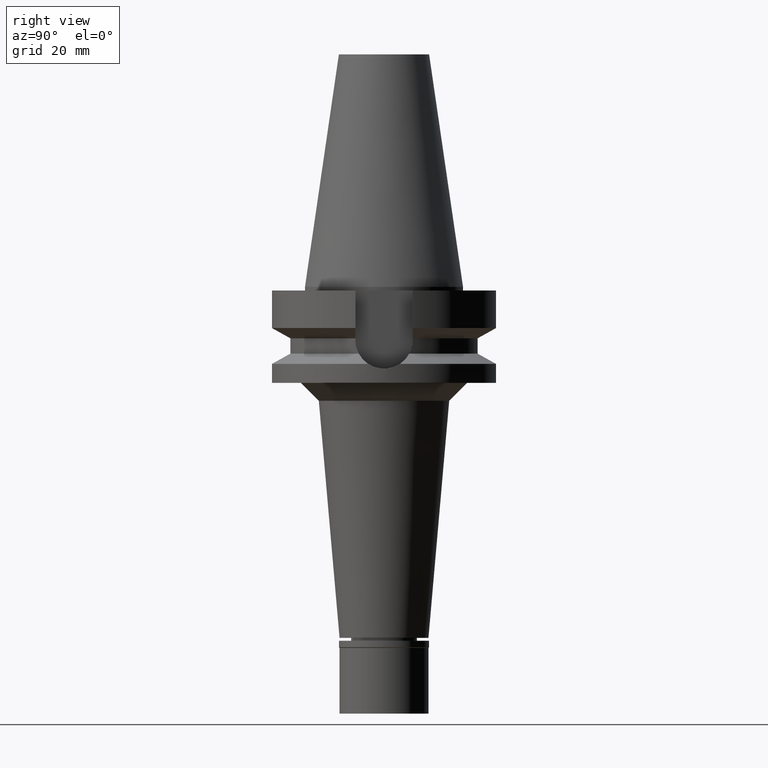
[diagram: clean part render]
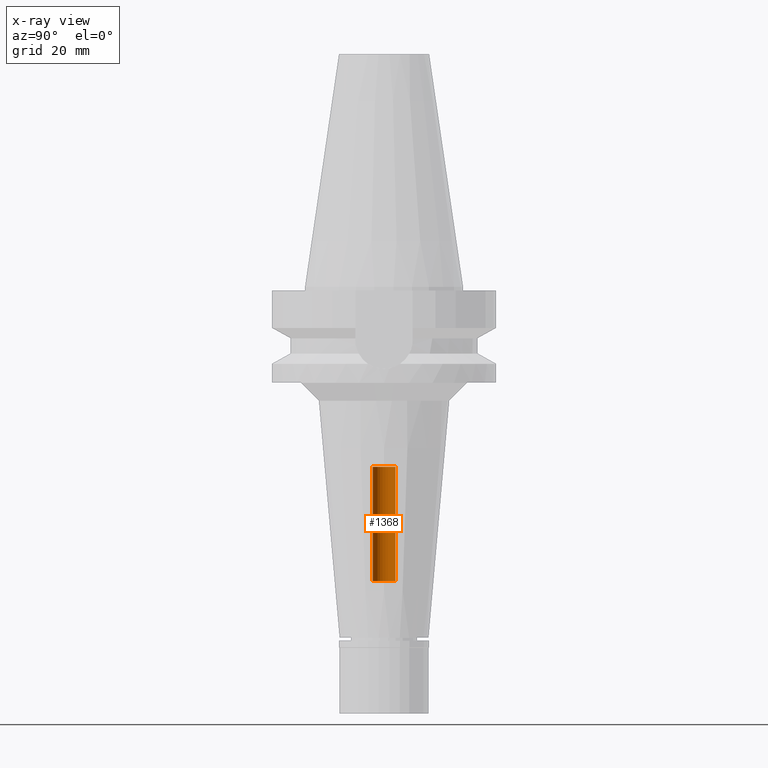
[diagram: x-ray — body ghosted, one internal face saturated and labeled with its STEP entity id]
A machine part, right view, then the same camera in x-ray: the body is ghosted and one INTERNAL B-rep face — a face not visible from any outside direction — is saturated and labeled: STEP entity #1368.
In plain terms, the highlighted cylindrical surface (edge-blend (fillet) strip) has radius 3.2 mm, axis along (0, 0, -1).
Its self-contained STEP definition (entity closure, byte-faithful):
#35 = CARTESIAN_POINT ( 'NONE',  ( 0.0000000000000000000, 3.200000000000000178, -82.79999999999999716 ) ) ;
#73 = AXIS2_PLACEMENT_3D ( 'NONE', #320, #2965, #2483 ) ;
#112 = CARTESIAN_POINT ( 'NONE',  ( 0.0000000000000000000, 2.135294158992999721E-14, -50.60000000000000142 ) ) ;
#139 = DIRECTION ( 'NONE',  ( 0.0000000000000000000, 0.0000000000000000000, -1.000000000000000000 ) ) ;
#173 = DIRECTION ( 'NONE',  ( 0.0000000000000000000, -1.000000000000000000, 0.0000000000000000000 ) ) ;
#225 = CARTESIAN_POINT ( 'NONE',  ( 0.0000000000000000000, -3.200000000000000178, -50.60000000000000142 ) ) ;
#244 = EDGE_CURVE ( 'NONE', #1211, #1273, #316, .T. ) ;
#316 = LINE ( 'NONE', #1025, #2407 ) ;
#320 = CARTESIAN_POINT ( 'NONE',  ( 0.0000000000000000000, 2.135294158992999721E-14, 74.35999999999999943 ) ) ;
#364 = EDGE_CURVE ( 'NONE', #1273, #1856, #3131, .T. ) ;
#790 = CARTESIAN_POINT ( 'NONE',  ( 0.0000000000000000000, 3.200000000000000178, -50.60000000000000142 ) ) ;
#849 = ORIENTED_EDGE ( 'NONE', *, *, #244, .T. ) ;
#1025 = CARTESIAN_POINT ( 'NONE',  ( 0.0000000000000000000, 3.200000000000000178, -82.79999999999999716 ) ) ;
#1028 = FACE_OUTER_BOUND ( 'NONE', #2341, .T. ) ;
#1066 = DIRECTION ( 'NONE',  ( 0.0000000000000000000, 0.0000000000000000000, 1.000000000000000000 ) ) ;
#1211 = VERTEX_POINT ( 'NONE', #35 ) ;
#1273 = VERTEX_POINT ( 'NONE', #790 ) ;
#1315 = DIRECTION ( 'NONE',  ( 0.0000000000000000000, 0.0000000000000000000, 1.000000000000000000 ) ) ;
#1368 = ADVANCED_FACE ( 'NONE', ( #1028 ), #1987, .F. ) ;
#1396 = VERTEX_POINT ( 'NONE', #2007 ) ;
#1456 = EDGE_CURVE ( 'NONE', #1396, #1211, #2752, .T. ) ;
#1492 = VECTOR ( 'NONE', #3069, 1000.000000000000000 ) ;
#1576 = ORIENTED_EDGE ( 'NONE', *, *, #364, .T. ) ;
#1618 = CARTESIAN_POINT ( 'NONE',  ( 0.0000000000000000000, 2.135294158992999721E-14, -82.79999999999999716 ) ) ;
#1678 = LINE ( 'NONE', #1846, #1492 ) ;
#1749 = AXIS2_PLACEMENT_3D ( 'NONE', #112, #1315, #2074 ) ;
#1846 = CARTESIAN_POINT ( 'NONE',  ( 0.0000000000000000000, -3.200000000000000178, -82.79999999999999716 ) ) ;
#1856 = VERTEX_POINT ( 'NONE', #225 ) ;
#1987 = CYLINDRICAL_SURFACE ( 'NONE', #73, 3.200000000000000178 ) ;
#2007 = CARTESIAN_POINT ( 'NONE',  ( 0.0000000000000000000, -3.200000000000000178, -82.79999999999999716 ) ) ;
#2074 = DIRECTION ( 'NONE',  ( 0.0000000000000000000, 1.000000000000000000, 0.0000000000000000000 ) ) ;
#2341 = EDGE_LOOP ( 'NONE', ( #1576, #2784, #2409, #849 ) ) ;
#2407 = VECTOR ( 'NONE', #1066, 1000.000000000000000 ) ;
#2409 = ORIENTED_EDGE ( 'NONE', *, *, #1456, .T. ) ;
#2483 = DIRECTION ( 'NONE',  ( 0.0000000000000000000, -1.000000000000000000, 0.0000000000000000000 ) ) ;
#2598 = AXIS2_PLACEMENT_3D ( 'NONE', #1618, #139, #173 ) ;
#2676 = EDGE_CURVE ( 'NONE', #1396, #1856, #1678, .T. ) ;
#2752 = CIRCLE ( 'NONE', #2598, 3.200000000000000178 ) ;
#2784 = ORIENTED_EDGE ( 'NONE', *, *, #2676, .F. ) ;
#2965 = DIRECTION ( 'NONE',  ( 0.0000000000000000000, 0.0000000000000000000, -1.000000000000000000 ) ) ;
#3069 = DIRECTION ( 'NONE',  ( 0.0000000000000000000, 0.0000000000000000000, 1.000000000000000000 ) ) ;
#3131 = CIRCLE ( 'NONE', #1749, 3.200000000000000178 ) ;